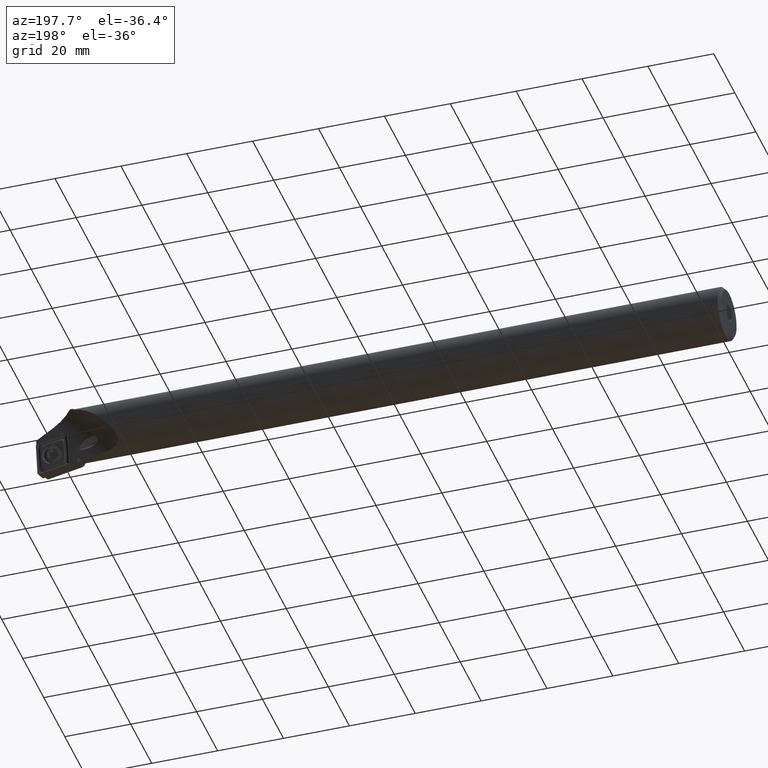
[diagram: clean part render]
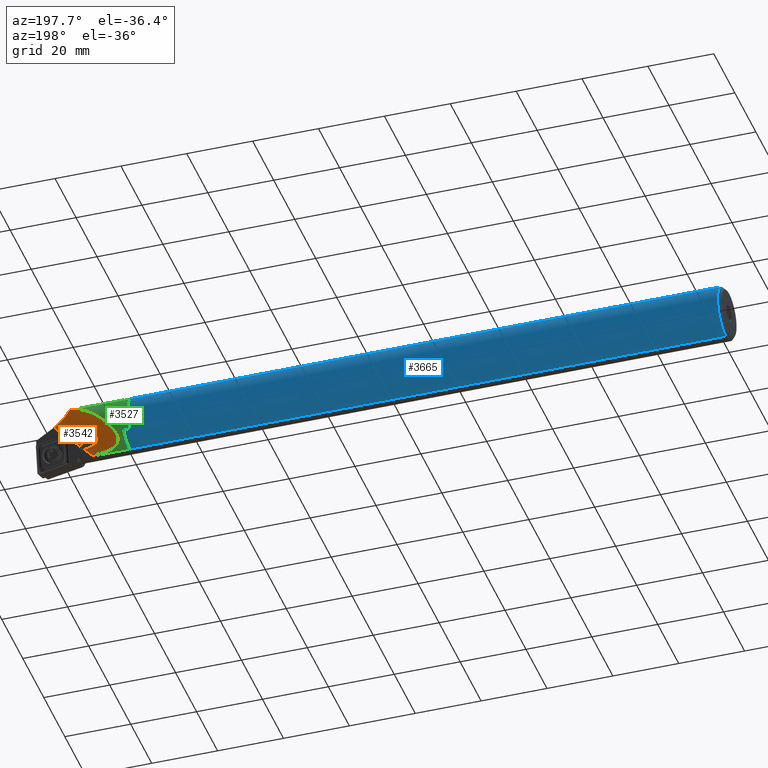
[diagram: same view with three faces highlighted in distinct colors, each labeled with its STEP entity id]
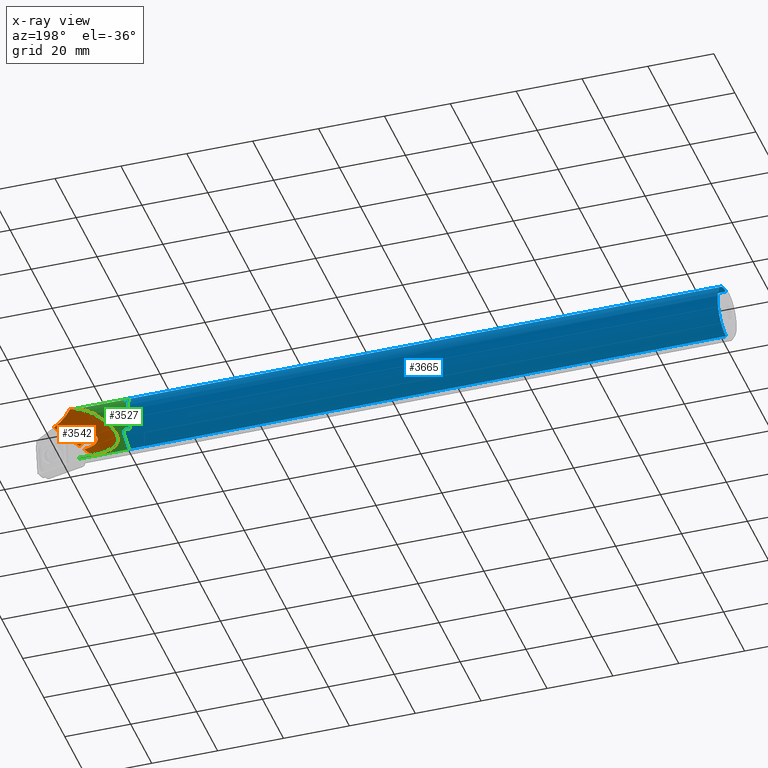
[diagram: x-ray of the same camera — body ghosted, the three highlighted faces saturated]
A machine part, auxiliary view with three faces highlighted in distinct colors.
The next image is the same camera in x-ray (body ghosted, the three faces saturated) — at least one of them is partly hidden behind the body in this view.
Their STEP definitions:

[orange] entity #3542 — the highlighted cylindrical surface (edge-blend (fillet) strip) has radius 10 mm, axis along (0.7017, 0.1237, 0.7017).
#62 = EDGE_CURVE ( 'NONE', #1733, #1750, #1026, .T. ) ;
#63 = EDGE_CURVE ( 'NONE', #1562, #1492, #3401, .T. ) ;
#64 = EDGE_CURVE ( 'NONE', #1503, #1492, #3387, .T. ) ;
#65 = EDGE_CURVE ( 'NONE', #1503, #1500, #3411, .T. ) ;
#66 = EDGE_CURVE ( 'NONE', #1642, #1500, #1017, .T. ) ;
#67 = EDGE_CURVE ( 'NONE', #1513, #1642, #3408, .T. ) ;
#68 = EDGE_CURVE ( 'NONE', #1751, #1497, #1108, .T. ) ;
#69 = EDGE_CURVE ( 'NONE', #1749, #1752, #3392, .T. ) ;
#412 = B_SPLINE_CURVE_WITH_KNOTS ( 'NONE', 3,
 ( #643, #652, #656, #657, #658, #659, #660, #661, #662, #663 ),
 .UNSPECIFIED., .F., .F.,
 ( 4, 2, 2, 2, 4 ),
 ( 8.331534646072879900E-017, 0.0009034669228116017800, 0.001806933845623120300, 0.002710400768434638800, 0.003613867691246157300 ),
 .UNSPECIFIED. ) ;
#429 = B_SPLINE_CURVE_WITH_KNOTS ( 'NONE', 3,
 ( #641, #640, #644, #645, #646, #647, #648, #649, #650, #651 ),
 .UNSPECIFIED., .F., .F.,
 ( 4, 2, 2, 2, 4 ),
 ( 0.009961593543882730000, 0.01066677178085007400, 0.01137195001781741800, 0.01207712825478476200, 0.01278230649175210600 ),
 .UNSPECIFIED. ) ;
#562 = CARTESIAN_POINT ( 'NONE',  ( 13.19691206762399500, 0.3048794854602927000, -7.994188420305423600 ) ) ;
#563 = CARTESIAN_POINT ( 'NONE',  ( 12.55990779225222700, 0.3048794854603129600, -7.994188420305423600 ) ) ;
#568 = CARTESIAN_POINT ( 'NONE',  ( 11.92826352814507000, 0.3362397817004940100, -7.993190554871852700 ) ) ;
#569 = CARTESIAN_POINT ( 'NONE',  ( 10.67629474721644400, 0.4649569152363503500, -7.986736974776641200 ) ) ;
#570 = CARTESIAN_POINT ( 'NONE',  ( 10.05593492632765300, 0.5621173772722286600, -7.981390578669111900 ) ) ;
#571 = CARTESIAN_POINT ( 'NONE',  ( 8.828588607646480600, 0.8336330403702199000, -7.957614433302383700 ) ) ;
#572 = CARTESIAN_POINT ( 'NONE',  ( 8.221475526521965400, 1.007293416494386300, -7.939670316204519900 ) ) ;
#573 = CARTESIAN_POINT ( 'NONE',  ( 7.026179083042718400, 1.462231007809192900, -7.868601224914963100 ) ) ;
#574 = CARTESIAN_POINT ( 'NONE',  ( 6.453090767474670900, 1.737205915765701400, -7.817247914304157800 ) ) ;
#575 = CARTESIAN_POINT ( 'NONE',  ( 5.796733732830551500, 2.167746518361623600, -7.701222507910516800 ) ) ;
#576 = CARTESIAN_POINT ( 'NONE',  ( 5.668448696224005300, 2.258389560386925500, -7.675269773176373700 ) ) ;
#577 = CARTESIAN_POINT ( 'NONE',  ( 5.419034177005180200, 2.450385708033715500, -7.616147279258959700 ) ) ;
#578 = CARTESIAN_POINT ( 'NONE',  ( 5.297206449383682300, 2.552413792243706700, -7.582737569549919100 ) ) ;
#579 = CARTESIAN_POINT ( 'NONE',  ( 4.951854678233359200, 2.871594964158866500, -7.470263932674411600 ) ) ;
#580 = CARTESIAN_POINT ( 'NONE',  ( 4.746495343046218500, 3.102961371781382200, -7.378896212232851000 ) ) ;
#581 = CARTESIAN_POINT ( 'NONE',  ( 4.410044580226719200, 3.605099432269986500, -7.147008931652338000 ) ) ;
#582 = CARTESIAN_POINT ( 'NONE',  ( 4.285775938472636600, 3.865771274280105800, -7.011038249318978900 ) ) ;
#583 = CARTESIAN_POINT ( 'NONE',  ( 4.172922453386557400, 4.269487528297569100, -6.767288043620514900 ) ) ;
#584 = CARTESIAN_POINT ( 'NONE',  ( 4.148275609639902900, 4.404692525571684700, -6.680138068654054400 ) ) ;
#585 = CARTESIAN_POINT ( 'NONE',  ( 4.124434477981220800, 4.668070153205809100, -6.498821578244570000 ) ) ;
#586 = CARTESIAN_POINT ( 'NONE',  ( 4.124882910303751000, 4.797434487890106100, -6.403949214173227500 ) ) ;
#587 = CARTESIAN_POINT ( 'NONE',  ( 4.148285493653692600, 5.051311502396528900, -6.205658330029446100 ) ) ;
#588 = CARTESIAN_POINT ( 'NONE',  ( 4.171335008039948300, 5.175081441216769400, -6.102721753747942100 ) ) ;
#589 = CARTESIAN_POINT ( 'NONE',  ( 4.235223179015871900, 5.410685120394380700, -5.894842428329821100 ) ) ;
#590 = CARTESIAN_POINT ( 'NONE',  ( 4.276143930086460500, 5.523525823928179300, -5.789125646170006700 ) ) ;
#591 = CARTESIAN_POINT ( 'NONE',  ( 4.421274820045398200, 5.848842421807415100, -5.466653036716814500 ) ) ;
#592 = CARTESIAN_POINT ( 'NONE',  ( 4.548737821150285600, 6.048944179041432900, -5.243272225408677700 ) ) ;
#593 = CARTESIAN_POINT ( 'NONE',  ( 4.836268178221102300, 6.407568198798311500, -4.798405890360869300 ) ) ;
#594 = CARTESIAN_POINT ( 'NONE',  ( 4.997257741919629100, 6.568306965706495000, -4.574874673675147100 ) ) ;
#595 = CARTESIAN_POINT ( 'NONE',  ( 5.343681471880620900, 6.860350276761155700, -4.124042768416195800 ) ) ;
#596 = CARTESIAN_POINT ( 'NONE',  ( 5.530265354239205100, 6.992121527028087000, -3.895579379131417900 ) ) ;
#597 = CARTESIAN_POINT ( 'NONE',  ( 6.109425181120694300, 7.343667472927737800, -3.214305000841939400 ) ) ;
#598 = CARTESIAN_POINT ( 'NONE',  ( 6.521111789138801700, 7.521910414693829600, -2.764343634409452700 ) ) ;
#599 = CARTESIAN_POINT ( 'NONE',  ( 7.162806284459606800, 7.725808420977646300, -2.089752915130344700 ) ) ;
#600 = CARTESIAN_POINT ( 'NONE',  ( 7.380915262128604900, 7.782953243960060200, -1.865033448610829100 ) ) ;
#601 = CARTESIAN_POINT ( 'NONE',  ( 7.824700095799509600, 7.877103126022005200, -1.415611989254100400 ) ) ;
#602 = CARTESIAN_POINT ( 'NONE',  ( 8.051053881071508700, 7.914137158563235600, -1.190268737553070500 ) ) ;
#603 = CARTESIAN_POINT ( 'NONE',  ( 9.187288868203234300, 8.049780751658595100, -0.07704521132747124700 ) ) ;
#604 = CARTESIAN_POINT ( 'NONE',  ( 10.11577070369677900, 8.004956223242940500, 0.7805279887805961500 ) ) ;
#605 = CARTESIAN_POINT ( 'NONE',  ( 11.55634175651995400, 7.757002464230291500, 2.000262430095542100 ) ) ;
#606 = CARTESIAN_POINT ( 'NONE',  ( 12.04756028830684000, 7.642922508220400400, 2.397183829365958600 ) ) ;
#607 = CARTESIAN_POINT ( 'NONE',  ( 13.03835969109079300, 7.364942713947606000, 3.149344947557493900 ) ) ;
#608 = CARTESIAN_POINT ( 'NONE',  ( 13.53763760492534700, 7.201496890293090500, 3.504553573336092900 ) ) ;
#609 = CARTESIAN_POINT ( 'NONE',  ( 15.05756116951498100, 6.656533895551027600, 4.501596309590202500 ) ) ;
#610 = CARTESIAN_POINT ( 'NONE',  ( 16.10066068931761100, 6.219596025045765600, 5.073779427718293700 ) ) ;
#611 = CARTESIAN_POINT ( 'NONE',  ( 17.20000000000006300, 5.766908848730163400, 5.544615616112456500 ) ) ;
#640 = CARTESIAN_POINT ( 'NONE',  ( 14.84282025984017900, 1.554635990364016300, -2.811618349431864100 ) ) ;
#641 = CARTESIAN_POINT ( 'NONE',  ( 14.63750822044960000, 1.633434259869636100, -2.724468559245919700 ) ) ;
#643 = CARTESIAN_POINT ( 'NONE',  ( 15.61272115689248200, 0.7308518081391096600, -5.578379331036938300 ) ) ;
#644 = CARTESIAN_POINT ( 'NONE',  ( 15.04302411737490500, 1.479664510520714500, -2.913021625577142200 ) ) ;
#645 = CARTESIAN_POINT ( 'NONE',  ( 15.43549794612114700, 1.339727414057416000, -3.141278463212653400 ) ) ;
#646 = CARTESIAN_POINT ( 'NONE',  ( 15.62853109664869000, 1.274557162682777000, -3.268811513396054900 ) ) ;
#647 = CARTESIAN_POINT ( 'NONE',  ( 15.99950207035085200, 1.158362409405295800, -3.542359413171593600 ) ) ;
#648 = CARTESIAN_POINT ( 'NONE',  ( 16.17847107078228000, 1.106965935827852500, -3.688746699452642100 ) ) ;
#649 = CARTESIAN_POINT ( 'NONE',  ( 16.52256836913703400, 1.017540057379880100, -4.001665609640490100 ) ) ;
#650 = CARTESIAN_POINT ( 'NONE',  ( 16.68817048126843600, 0.9795962371098974100, -4.167679573283775700 ) ) ;
#651 = CARTESIAN_POINT ( 'NONE',  ( 16.84213972786931300, 0.9476314727863974800, -4.348960760060043300 ) ) ;
#652 = CARTESIAN_POINT ( 'NONE',  ( 15.30730973233810700, 0.7330987040202483500, -5.565636551275641600 ) ) ;
#656 = CARTESIAN_POINT ( 'NONE',  ( 15.00518708265653900, 0.7453221001493056700, -5.540874846345150000 ) ) ;
#657 = CARTESIAN_POINT ( 'NONE',  ( 14.40656695467210600, 0.7910792344386252700, -5.474417357248416500 ) ) ;
#658 = CARTESIAN_POINT ( 'NONE',  ( 14.11011193225832200, 0.8246032230554116700, -5.432448206285273300 ) ) ;
#659 = CARTESIAN_POINT ( 'NONE',  ( 13.52372289175507300, 0.9164464080088936500, -5.328956732789382800 ) ) ;
#660 = CARTESIAN_POINT ( 'NONE',  ( 13.23375810065958500, 0.9746645783670752100, -5.267540321437599500 ) ) ;
#661 = CARTESIAN_POINT ( 'NONE',  ( 12.66276925232470100, 1.122906864638323300, -5.116030193075856900 ) ) ;
#662 = CARTESIAN_POINT ( 'NONE',  ( 12.38065750689340800, 1.213525146650746400, -5.025573399612524000 ) ) ;
#663 = CARTESIAN_POINT ( 'NONE',  ( 12.11822203250132000, 1.322372983797305100, -4.914176149853084000 ) ) ;
#718 = CARTESIAN_POINT ( 'NONE',  ( 17.72915026221291900, 5.689668439315593000, 5.904885523924751700 ) ) ;
#720 = CARTESIAN_POINT ( 'NONE',  ( 19.79055538857846100, 1.467516704112803000, -1.400545099350877900 ) ) ;
#721 = CARTESIAN_POINT ( 'NONE',  ( 21.25549330452729200, 1.906495661846890700, 0.9684651836071489500 ) ) ;
#722 = CARTESIAN_POINT ( 'NONE',  ( 24.31901265563577000, 2.266005901280355500, 3.127912167706429400 ) ) ;
#724 = CARTESIAN_POINT ( 'NONE',  ( 18.44594857874853800, 5.394066060381171600, 6.176087057048669700 ) ) ;
#752 = CARTESIAN_POINT ( 'NONE',  ( 17.20000000000006300, 5.766908848730163400, 5.544615616112456500 ) ) ;
#929 = VECTOR ( 'NONE', #2329, 1000.000000000000000 ) ;
#987 = VECTOR ( 'NONE', #2307, 1000.000000000000000 ) ;
#1017 = LINE ( 'NONE', #2319, #1217 ) ;
#1026 = LINE ( 'NONE', #2301, #987 ) ;
#1108 = LINE ( 'NONE', #2324, #929 ) ;
#1217 = VECTOR ( 'NONE', #2323, 1000.000000000000000 ) ;
#1443 = EDGE_CURVE ( 'NONE', #1733, #1562, #4973, .T. ) ;
#1447 = EDGE_CURVE ( 'NONE', #1752, #1751, #429, .T. ) ;
#1449 = EDGE_CURVE ( 'NONE', #1750, #1749, #412, .T. ) ;
#1476 = ORIENTED_EDGE ( 'NONE', *, *, #66, .F. ) ;
#1492 = VERTEX_POINT ( 'NONE', #718 ) ;
#1495 = ORIENTED_EDGE ( 'NONE', *, *, #68, .F. ) ;
#1496 = ORIENTED_EDGE ( 'NONE', *, *, #62, .F. ) ;
#1497 = VERTEX_POINT ( 'NONE', #720 ) ;
#1500 = VERTEX_POINT ( 'NONE', #722 ) ;
#1503 = VERTEX_POINT ( 'NONE', #724 ) ;
#1513 = VERTEX_POINT ( 'NONE', #721 ) ;
#1558 = ORIENTED_EDGE ( 'NONE', *, *, #2743, .F. ) ;
#1562 = VERTEX_POINT ( 'NONE', #752 ) ;
#1642 = VERTEX_POINT ( 'NONE', #3669 ) ;
#1685 = ORIENTED_EDGE ( 'NONE', *, *, #1443, .T. ) ;
#1687 = ORIENTED_EDGE ( 'NONE', *, *, #1449, .F. ) ;
#1733 = VERTEX_POINT ( 'NONE', #3704 ) ;
#1749 = VERTEX_POINT ( 'NONE', #3719 ) ;
#1750 = VERTEX_POINT ( 'NONE', #3720 ) ;
#1751 = VERTEX_POINT ( 'NONE', #3721 ) ;
#1752 = VERTEX_POINT ( 'NONE', #3722 ) ;
#2089 = ORIENTED_EDGE ( 'NONE', *, *, #63, .T. ) ;
#2090 = ORIENTED_EDGE ( 'NONE', *, *, #64, .F. ) ;
#2106 = ORIENTED_EDGE ( 'NONE', *, *, #67, .F. ) ;
#2107 = ORIENTED_EDGE ( 'NONE', *, *, #1447, .F. ) ;
#2108 = ORIENTED_EDGE ( 'NONE', *, *, #69, .F. ) ;
#2112 = ORIENTED_EDGE ( 'NONE', *, *, #65, .T. ) ;
#2117 = B_SPLINE_CURVE_WITH_KNOTS ( 'NONE', 3,
 ( #3737, #3738, #3743, #3744, #3745, #3746, #3747, #3748, #3749, #3750, #3751, #3752, #3753, #3754, #3755, #3756, #3757, #3758 ),
 .UNSPECIFIED., .F., .F.,
 ( 4, 2, 2, 2, 2, 2, 2, 2, 4 ),
 ( 3.728898976508548800E-017, 0.0004207973918956817500, 0.0008415947837913262000, 0.001262392175686970800, 0.001683189567582615800, 0.002103986959478260700, 0.002524784351373905200, 0.002945581743269550100, 0.003366379135165195100 ),
 .UNSPECIFIED. ) ;
#2292 = CARTESIAN_POINT ( 'NONE',  ( 18.20481101344134300, 5.492218084267162400, 6.090363119560290500 ) ) ;
#2297 = CARTESIAN_POINT ( 'NONE',  ( 17.38779930840104300, 5.701411831666499500, 5.635617829380011700 ) ) ;
#2301 = CARTESIAN_POINT ( 'NONE',  ( -84.84131182259415000, -16.98190452712309200, -106.0324123105246900 ) ) ;
#2306 = CARTESIAN_POINT ( 'NONE',  ( 17.29505511485568500, 5.727766946753055400, 5.585326784658019700 ) ) ;
#2307 = DIRECTION ( 'NONE',  ( 0.7016738431598594800, 0.1237240302064883100, 0.7016738431598664700 ) ) ;
#2308 = CARTESIAN_POINT ( 'NONE',  ( 20.03677730345767200, 3.579001329078760100, 5.451725996893344500 ) ) ;
#2309 = CARTESIAN_POINT ( 'NONE',  ( 17.20000000000006300, 5.766908848730163400, 5.544615616112456500 ) ) ;
#2310 = CARTESIAN_POINT ( 'NONE',  ( 17.56781747906008600, 5.674337769016178300, 5.756856763397999900 ) ) ;
#2311 = CARTESIAN_POINT ( 'NONE',  ( 17.65396660953325300, 5.674322365438310800, 5.827594767056617700 ) ) ;
#2312 = CARTESIAN_POINT ( 'NONE',  ( 17.72915026221291900, 5.689668439315593000, 5.904885523924751700 ) ) ;
#2313 = CARTESIAN_POINT ( 'NONE',  ( 21.50859645038772400, 1.893015872130834600, 0.9560248903260120100 ) ) ;
#2314 = CARTESIAN_POINT ( 'NONE',  ( 18.44594857874853800, 5.394066060381171600, 6.176087057048669700 ) ) ;
#2315 = CARTESIAN_POINT ( 'NONE',  ( 11.89110342614652400, 1.421622683856539100, -4.812110209784849600 ) ) ;
#2316 = CARTESIAN_POINT ( 'NONE',  ( 17.96594125352922300, 5.590953315549543700, 6.000002748788763700 ) ) ;
#2317 = CARTESIAN_POINT ( 'NONE',  ( 17.72915026221291900, 5.689668439315593000, 5.904885523924751700 ) ) ;
#2318 = CARTESIAN_POINT ( 'NONE',  ( 18.44594857874853800, 5.394066060381171600, 6.176087057048669700 ) ) ;
#2319 = CARTESIAN_POINT ( 'NONE',  ( -84.84131182259415000, -16.98190452712309200, -106.0324123105246900 ) ) ;
#2320 = CARTESIAN_POINT ( 'NONE',  ( 22.08450497907624000, 2.488358476398444100, 4.388936284518893900 ) ) ;
#2321 = CARTESIAN_POINT ( 'NONE',  ( 24.31901265563577000, 2.266005901280355500, 3.127912167706429400 ) ) ;
#2322 = CARTESIAN_POINT ( 'NONE',  ( 21.38304335640204800, 1.900695287936372500, 0.9694879460257702600 ) ) ;
#2323 = DIRECTION ( 'NONE',  ( 0.7016738431598594800, 0.1237240302064883100, 0.7016738431598664700 ) ) ;
#2324 = CARTESIAN_POINT ( 'NONE',  ( -84.84131182259415000, -16.98190452712309200, -106.0324123105246900 ) ) ;
#2325 = CARTESIAN_POINT ( 'NONE',  ( 21.25549330452729200, 1.906495661846890700, 0.9684651836071489500 ) ) ;
#2326 = CARTESIAN_POINT ( 'NONE',  ( 21.75582186300909300, 1.875518281181447700, 0.9002398606194730300 ) ) ;
#2327 = CARTESIAN_POINT ( 'NONE',  ( 21.87741289689638400, 1.865679772751403400, 0.8575498730622700400 ) ) ;
#2328 = CARTESIAN_POINT ( 'NONE',  ( 21.99222719825925800, 1.855730846824767700, 0.8011267103298448400 ) ) ;
#2329 = DIRECTION ( 'NONE',  ( 0.7016738431598594800, 0.1237240302064883100, 0.7016738431598664700 ) ) ;
#2330 = CARTESIAN_POINT ( 'NONE',  ( 12.00298064932320800, 1.370170543703304900, -4.865259084908821300 ) ) ;
#2332 = CARTESIAN_POINT ( 'NONE',  ( 12.11822203250132000, 1.322372983797305100, -4.914176149853084000 ) ) ;
#2334 = CARTESIAN_POINT ( 'NONE',  ( 11.67612899880506000, 1.533305358634393400, -4.694032578636477400 ) ) ;
#2335 = CARTESIAN_POINT ( 'NONE',  ( 11.57270809088052700, 1.593822675695127900, -4.628800798042870000 ) ) ;
#2336 = CARTESIAN_POINT ( 'NONE',  ( 11.28942920854818900, 1.786257176356153700, -4.413224124375235900 ) ) ;
#2337 = CARTESIAN_POINT ( 'NONE',  ( 11.12984633699328700, 1.933602734324389600, -4.239748769072737600 ) ) ;
#2338 = CARTESIAN_POINT ( 'NONE',  ( 11.01396903705884100, 2.159117638129786500, -3.919233530175281600 ) ) ;
#2339 = CARTESIAN_POINT ( 'NONE',  ( 10.99794412616091500, 2.232943513153496700, -3.804346503884310500 ) ) ;
#2340 = CARTESIAN_POINT ( 'NONE',  ( 11.02083313052140500, 2.364220932677128000, -3.568766135636087400 ) ) ;
#2341 = CARTESIAN_POINT ( 'NONE',  ( 11.06010199158813900, 2.420906184610438000, -3.448877769649515200 ) ) ;
#2342 = CARTESIAN_POINT ( 'NONE',  ( 11.18344900392882700, 2.505848791301044100, -3.223778087975471600 ) ) ;
#2343 = CARTESIAN_POINT ( 'NONE',  ( 11.26767571858903600, 2.534577112045383300, -3.117627346744667800 ) ) ;
#2344 = CARTESIAN_POINT ( 'NONE',  ( 11.45880633234513400, 2.565725742718492500, -2.930561534224526800 ) ) ;
#2345 = CARTESIAN_POINT ( 'NONE',  ( 11.56814800011704800, 2.568807510995282600, -2.846929244629273500 ) ) ;
#2346 = CARTESIAN_POINT ( 'NONE',  ( 11.91009437856113500, 2.549475517659061600, -2.633190070251259000 ) ) ;
#2347 = CARTESIAN_POINT ( 'NONE',  ( 12.16281702113859900, 2.499302585708969500, -2.534773218728028100 ) ) ;
#2348 = CARTESIAN_POINT ( 'NONE',  ( 12.66711636770933700, 2.366047831831274500, -2.413224737432489300 ) ) ;
#2349 = CARTESIAN_POINT ( 'NONE',  ( 12.92588896074342500, 2.281078381600582600, -2.388548402924875800 ) ) ;
#2350 = CARTESIAN_POINT ( 'NONE',  ( 13.42998182739068200, 2.101758726596643500, -2.398095708289280600 ) ) ;
#2351 = CARTESIAN_POINT ( 'NONE',  ( 13.67743138357655800, 2.006794973457307800, -2.431493427587643600 ) ) ;
#2352 = CARTESIAN_POINT ( 'NONE',  ( 14.16768019730539400, 1.816213144719602800, -2.545954249915130400 ) ) ;
#2353 = CARTESIAN_POINT ( 'NONE',  ( 14.40649135266063800, 1.722097981015330300, -2.626407716749870500 ) ) ;
#2354 = CARTESIAN_POINT ( 'NONE',  ( 14.63750822044960000, 1.633434259869636100, -2.724468559245919700 ) ) ;
#2616 = AXIS2_PLACEMENT_3D ( 'NONE', #2874, #2872, #2867 ) ;
#2743 = EDGE_CURVE ( 'NONE', #1497, #1513, #2117, .T. ) ;
#2867 = DIRECTION ( 'NONE',  ( 0.7071067811865516800, 0.0000000000000000000, -0.7071067811865434600 ) ) ;
#2872 = DIRECTION ( 'NONE',  ( 0.7016738431598594800, 0.1237240302064883100, 0.7016738431598664700 ) ) ;
#2874 = CARTESIAN_POINT ( 'NONE',  ( -84.84131182259416400, -7.133826997000988400, -107.7688940871939700 ) ) ;
#3387 = B_SPLINE_CURVE_WITH_KNOTS ( 'NONE', 3,
 ( #2314, #2292, #2316, #2317 ),
 .UNSPECIFIED., .F., .F.,
 ( 4, 4 ),
 ( 0.002212834024879329800, 0.003033183488462330100 ),
 .UNSPECIFIED. ) ;
#3392 = B_SPLINE_CURVE_WITH_KNOTS ( 'NONE', 3,
 ( #2332, #2330, #2315, #2334, #2335, #2336, #2337, #2338, #2339, #2340, #2341, #2342, #2343, #2344, #2345, #2346, #2347, #2348, #2349, #2350, #2351, #2352, #2353, #2354 ),
 .UNSPECIFIED., .F., .F.,
 ( 4, 2, 2, 2, 2, 2, 2, 2, 2, 2, 2, 4 ),
 ( 0.003613867691246157300, 0.004010600557035944700, 0.004407333422825733000, 0.005200799154405307000, 0.005597532020195093500, 0.005994264885984880100, 0.006390997751774665800, 0.006787730617564453200, 0.007581196349144022000, 0.008374662080723590700, 0.009168127812303160400, 0.009961593543882730000 ),
 .UNSPECIFIED. ) ;
#3401 = B_SPLINE_CURVE_WITH_KNOTS ( 'NONE', 3,
 ( #2309, #2306, #2297, #2310, #2311, #2312 ),
 .UNSPECIFIED., .F., .F.,
 ( 4, 2, 4 ),
 ( 2.286173011845496300E-007, 0.0003262029871419422900, 0.0006521773569827000100 ),
 .UNSPECIFIED. ) ;
#3408 = B_SPLINE_CURVE_WITH_KNOTS ( 'NONE', 3,
 ( #2325, #2322, #2313, #2326, #2327, #2328 ),
 .UNSPECIFIED., .F., .F.,
 ( 4, 2, 4 ),
 ( 0.003366379135165195100, 0.003745826013761129200, 0.004125272892357063400 ),
 .UNSPECIFIED. ) ;
#3411 =( BOUNDED_CURVE ( )  B_SPLINE_CURVE ( 3, ( #2318, #2308, #2320, #2321 ),
 .UNSPECIFIED., .F., .F. ) 
 B_SPLINE_CURVE_WITH_KNOTS ( ( 4, 4 ),
 ( 3.746558510862781200, 4.477004050082562100 ),
 .UNSPECIFIED. ) 
 CURVE ( )  GEOMETRIC_REPRESENTATION_ITEM ( )  RATIONAL_B_SPLINE_CURVE ( ( 1.000000000000000000, 0.9560294803544646700, 0.9560294803544646700, 1.000000000000000000 ) ) 
 REPRESENTATION_ITEM ( '' )  );
#3542 = ADVANCED_FACE ( 'NONE', ( #4959 ), #4656, .F. ) ;
#3669 = CARTESIAN_POINT ( 'NONE',  ( 21.99222719825925800, 1.855730846824767700, 0.8011267103298448400 ) ) ;
#3704 = CARTESIAN_POINT ( 'NONE',  ( 13.19691206762399500, 0.3048794854602927000, -7.994188420305423600 ) ) ;
#3719 = CARTESIAN_POINT ( 'NONE',  ( 12.11822203250132000, 1.322372983797305100, -4.914176149853084000 ) ) ;
#3720 = CARTESIAN_POINT ( 'NONE',  ( 15.61272115689248200, 0.7308518081391096600, -5.578379331036938300 ) ) ;
#3721 = CARTESIAN_POINT ( 'NONE',  ( 16.84213972786931300, 0.9476314727863974800, -4.348960760060043300 ) ) ;
#3722 = CARTESIAN_POINT ( 'NONE',  ( 14.63750822044960000, 1.633434259869636100, -2.724468559245919700 ) ) ;
#3737 = CARTESIAN_POINT ( 'NONE',  ( 19.79055538857846100, 1.467516704112803000, -1.400545099350877900 ) ) ;
#3738 = CARTESIAN_POINT ( 'NONE',  ( 19.72507445833015200, 1.489455908211762900, -1.276121690007634200 ) ) ;
#3743 = CARTESIAN_POINT ( 'NONE',  ( 19.67710912579259700, 1.515048477479875800, -1.146706080990929100 ) ) ;
#3744 = CARTESIAN_POINT ( 'NONE',  ( 19.61505740534659400, 1.571607123147681600, -0.8778805087033284500 ) ) ;
#3745 = CARTESIAN_POINT ( 'NONE',  ( 19.60167991494991200, 1.602589769949742000, -0.7385946404728978000 ) ) ;
#3746 = CARTESIAN_POINT ( 'NONE',  ( 19.61121838056363500, 1.664405007274709400, -0.4650665975503306400 ) ) ;
#3747 = CARTESIAN_POINT ( 'NONE',  ( 19.63432817380208600, 1.696084364420295200, -0.3269486788865633700 ) ) ;
#3748 = CARTESIAN_POINT ( 'NONE',  ( 19.71476252906463200, 1.755159616425298900, -0.06399298221742660800 ) ) ;
#3749 = CARTESIAN_POINT ( 'NONE',  ( 19.77188080976472800, 1.782826245331807300, 0.06205670231710998900 ) ) ;
#3750 = CARTESIAN_POINT ( 'NONE',  ( 19.91930858404587900, 1.832000435405807900, 0.2996295219868883600 ) ) ;
#3751 = CARTESIAN_POINT ( 'NONE',  ( 20.00696803422828700, 1.852691491299656200, 0.4071987407952578600 ) ) ;
#3752 = CARTESIAN_POINT ( 'NONE',  ( 20.20965068880028800, 1.885964430868886800, 0.6004143312571043100 ) ) ;
#3753 = CARTESIAN_POINT ( 'NONE',  ( 20.32435565976902900, 1.898286378457097400, 0.6849461022688065900 ) ) ;
#3754 = CARTESIAN_POINT ( 'NONE',  ( 20.56884499984160200, 1.913896066164790800, 0.8218318441938372600 ) ) ;
#3755 = CARTESIAN_POINT ( 'NONE',  ( 20.70197059014590100, 1.917372206178420600, 0.8758795630772237000 ) ) ;
#3756 = CARTESIAN_POINT ( 'NONE',  ( 20.97355272550549500, 1.916836032120321300, 0.9481425558517448900 ) ) ;
#3757 = CARTESIAN_POINT ( 'NONE',  ( 21.11404338836602100, 1.912928135932848500, 0.9673309648730864500 ) ) ;
#3758 = CARTESIAN_POINT ( 'NONE',  ( 21.25549330452729200, 1.906495661846890700, 0.9684651836071489500 ) ) ;
#4335 = EDGE_LOOP ( 'NONE', ( #1496, #1685, #2089, #2090, #2112, #1476, #2106, #1558, #1495, #2107, #2108, #1687 ) ) ;
#4656 = CYLINDRICAL_SURFACE ( 'NONE', #2616, 10.00000000000002300 ) ;
#4959 = FACE_OUTER_BOUND ( 'NONE', #4335, .T. ) ;
#4973 = B_SPLINE_CURVE_WITH_KNOTS ( 'NONE', 3,
 ( #562, #563, #568, #569, #570, #571, #572, #573, #574, #575, #576, #577, #578, #579, #580, #581, #582, #583, #584, #585, #586, #587, #588, #589, #590, #591, #592, #593, #594, #595, #596, #597, #598, #599, #600, #601, #602, #603, #604, #605, #606, #607, #608, #609, #610, #611 ),
 .UNSPECIFIED., .F., .F.,
 ( 4, 2, 2, 2, 2, 2, 2, 2, 2, 2, 2, 2, 2, 2, 2, 2, 2, 2, 2, 2, 2, 2, 4 ),
 ( 1.460806627914136500E-016, 0.001883603924333945100, 0.003767207848667744000, 0.005650811773001542500, 0.007534415697335338800, 0.008005316678418786600, 0.008476217659502237000, 0.009418019621669132500, 0.01035982158383602800, 0.01083072256491947500, 0.01130162354600292500, 0.01177252452708637200, 0.01224342550816982100, 0.01318522747033671700, 0.01412702943250361400, 0.01506883139467050900, 0.01695243531900430400, 0.01789423728117119800, 0.01883603924333809900, 0.02260324709200569500, 0.02448685101633948900, 0.02637045494067328400, 0.03013766278934087600 ),
 .UNSPECIFIED. ) ;

[blue] entity #3665 — the highlighted cylindrical surface (edge-blend (fillet) strip) has radius 8 mm, axis along (-1, -0, 0).
#158 = ORIENTED_EDGE ( 'NONE', *, *, #3486, .F. ) ;
#162 = ORIENTED_EDGE ( 'NONE', *, *, #3487, .T. ) ;
#167 = ORIENTED_EDGE ( 'NONE', *, *, #3493, .F. ) ;
#171 = ORIENTED_EDGE ( 'NONE', *, *, #3492, .T. ) ;
#174 = ORIENTED_EDGE ( 'NONE', *, *, #3485, .F. ) ;
#180 = ORIENTED_EDGE ( 'NONE', *, *, #3490, .T. ) ;
#183 = ORIENTED_EDGE ( 'NONE', *, *, #3488, .F. ) ;
#198 = ORIENTED_EDGE ( 'NONE', *, *, #3489, .F. ) ;
#825 = VECTOR ( 'NONE', #4025, 1000.000000000000000 ) ;
#827 = CIRCLE ( 'NONE', #2543, 8.000000000000007100 ) ;
#833 = CIRCLE ( 'NONE', #2540, 8.000000000000007100 ) ;
#837 = VECTOR ( 'NONE', #4021, 1000.000000000000000 ) ;
#848 = CIRCLE ( 'NONE', #2547, 8.000000000000007100 ) ;
#853 = LINE ( 'NONE', #4030, #825 ) ;
#856 = LINE ( 'NONE', #4026, #882 ) ;
#857 = LINE ( 'NONE', #4035, #893 ) ;
#863 = CIRCLE ( 'NONE', #2542, 8.000000000000007100 ) ;
#882 = VECTOR ( 'NONE', #4031, 1000.000000000000000 ) ;
#893 = VECTOR ( 'NONE', #4036, 1000.000000000000000 ) ;
#894 = LINE ( 'NONE', #4020, #837 ) ;
#1911 = EDGE_LOOP ( 'NONE', ( #174, #162, #158, #183, #198, #180, #171, #167 ) ) ;
#2540 = AXIS2_PLACEMENT_3D ( 'NONE', #4022, #4023, #4024 ) ;
#2542 = AXIS2_PLACEMENT_3D ( 'NONE', #4027, #4028, #4029 ) ;
#2543 = AXIS2_PLACEMENT_3D ( 'NONE', #4032, #4033, #4034 ) ;
#2547 = AXIS2_PLACEMENT_3D ( 'NONE', #4041, #4042, #4043 ) ;
#3485 = EDGE_CURVE ( 'NONE', #4376, #4281, #833, .T. ) ;
#3486 = EDGE_CURVE ( 'NONE', #4221, #4204, #863, .T. ) ;
#3487 = EDGE_CURVE ( 'NONE', #4376, #4204, #894, .T. ) ;
#3488 = EDGE_CURVE ( 'NONE', #4209, #4221, #856, .T. ) ;
#3489 = EDGE_CURVE ( 'NONE', #4315, #4209, #827, .T. ) ;
#3490 = EDGE_CURVE ( 'NONE', #4315, #4303, #853, .T. ) ;
#3492 = EDGE_CURVE ( 'NONE', #4303, #4401, #848, .T. ) ;
#3493 = EDGE_CURVE ( 'NONE', #4281, #4401, #857, .T. ) ;
#3665 = ADVANCED_FACE ( 'NONE', ( #4606 ), #4615, .T. ) ;
#4020 = CARTESIAN_POINT ( 'NONE',  ( -184.6546161680327000, -3.747448090156407900E-014, -8.000000000000005300 ) ) ;
#4021 = DIRECTION ( 'NONE',  ( -1.000000000000000000, -1.081007496269136300E-016, 4.550406820893250800E-017 ) ) ;
#4022 = CARTESIAN_POINT ( 'NONE',  ( 1.950000000000000400, 5.583709814272271300E-017, 4.123749905912599300E-015 ) ) ;
#4023 = DIRECTION ( 'NONE',  ( 1.000000000000000000, 1.081007496269136300E-016, -4.550406820893250800E-017 ) ) ;
#4024 = DIRECTION ( 'NONE',  ( -8.131516293641275900E-017, 5.551115123125777800E-017, -1.000000000000000000 ) ) ;
#4025 = DIRECTION ( 'NONE',  ( -1.000000000000000000, -1.081007496269136300E-016, 4.550406820893250800E-017 ) ) ;
#4026 = CARTESIAN_POINT ( 'NONE',  ( -184.6546161680327000, -3.934237676058209200E-014, 8.000000000000008900 ) ) ;
#4027 = CARTESIAN_POINT ( 'NONE',  ( -179.0000000000004300, -1.157295511637398800E-014, -1.653830408135382800E-016 ) ) ;
#4028 = DIRECTION ( 'NONE',  ( -1.000000000000000000, -1.081007496269136300E-016, 4.550406820893250800E-017 ) ) ;
#4029 = DIRECTION ( 'NONE',  ( 0.0000000000000000000, -5.551115123125782700E-017, 1.000000000000000000 ) ) ;
#4030 = CARTESIAN_POINT ( 'NONE',  ( 1.950000000000000400, 5.925000000000011400, 5.375348825890282200 ) ) ;
#4031 = DIRECTION ( 'NONE',  ( -1.000000000000000000, -1.081007496269136300E-016, 4.550406820893250800E-017 ) ) ;
#4032 = CARTESIAN_POINT ( 'NONE',  ( 1.950000000000000400, 5.583709814272271300E-017, 4.123749905912599300E-015 ) ) ;
#4033 = DIRECTION ( 'NONE',  ( 1.000000000000000000, 1.081007496269136300E-016, -4.550406820893250800E-017 ) ) ;
#4034 = DIRECTION ( 'NONE',  ( -8.131516293641275900E-017, 5.551115123125777800E-017, -1.000000000000000000 ) ) ;
#4035 = CARTESIAN_POINT ( 'NONE',  ( 1.950000000000000400, 5.925000000000012300, -5.375348825890279500 ) ) ;
#4036 = DIRECTION ( 'NONE',  ( -1.000000000000000000, -1.081007496269136300E-016, 4.550406820893250800E-017 ) ) ;
#4041 = CARTESIAN_POINT ( 'NONE',  ( 0.0000000000000000000, 0.0000000000000000000, 0.0000000000000000000 ) ) ;
#4042 = DIRECTION ( 'NONE',  ( -1.000000000000000000, -1.081007496269136300E-016, 4.550406820893250800E-017 ) ) ;
#4043 = DIRECTION ( 'NONE',  ( 8.617803217782845300E-017, -5.551115123125777800E-017, 1.000000000000000000 ) ) ;
#4204 = VERTEX_POINT ( 'NONE', #5160 ) ;
#4209 = VERTEX_POINT ( 'NONE', #5166 ) ;
#4221 = VERTEX_POINT ( 'NONE', #5165 ) ;
#4281 = VERTEX_POINT ( 'NONE', #5203 ) ;
#4303 = VERTEX_POINT ( 'NONE', #5210 ) ;
#4315 = VERTEX_POINT ( 'NONE', #5223 ) ;
#4376 = VERTEX_POINT ( 'NONE', #5246 ) ;
#4401 = VERTEX_POINT ( 'NONE', #5261 ) ;
#4606 = FACE_OUTER_BOUND ( 'NONE', #1911, .T. ) ;
#4615 = CYLINDRICAL_SURFACE ( 'NONE', #5005, 8.000000000000007100 ) ;
#5005 = AXIS2_PLACEMENT_3D ( 'NONE', #5161, #5158, #5157 ) ;
#5157 = DIRECTION ( 'NONE',  ( 0.0000000000000000000, -5.551115123125782700E-017, 1.000000000000000000 ) ) ;
#5158 = DIRECTION ( 'NONE',  ( -1.000000000000000000, -1.081007496269136300E-016, 4.550406820893250800E-017 ) ) ;
#5160 = CARTESIAN_POINT ( 'NONE',  ( -179.0000000000004300, -2.708279733245227100E-014, -8.000000000000000000 ) ) ;
#5161 = CARTESIAN_POINT ( 'NONE',  ( -184.6546161680327000, -3.889828755073202900E-014, 1.078580501998626200E-015 ) ) ;
#5165 = CARTESIAN_POINT ( 'NONE',  ( -179.0000000000004300, -1.201704432622405000E-014, 8.000000000000007100 ) ) ;
#5166 = CARTESIAN_POINT ( 'NONE',  ( 1.950000000000000800, -2.895069319147030000E-014, 8.000000000000003600 ) ) ;
#5203 = CARTESIAN_POINT ( 'NONE',  ( 1.950000000000000400, 5.925000000000012300, -5.375348825890279500 ) ) ;
#5210 = CARTESIAN_POINT ( 'NONE',  ( -4.163336342344337000E-014, 5.925000000000010500, 5.375348825890279500 ) ) ;
#5223 = CARTESIAN_POINT ( 'NONE',  ( 1.950000000000000400, 5.925000000000011400, 5.375348825890282200 ) ) ;
#5246 = CARTESIAN_POINT ( 'NONE',  ( 1.950000000000000000, -2.708279733245225600E-014, -7.999999999999996400 ) ) ;
#5261 = CARTESIAN_POINT ( 'NONE',  ( 6.938893903907228400E-015, 5.925000000000008700, -5.375348825890279500 ) ) ;

[green] entity #3527 — the highlighted cylindrical surface (edge-blend (fillet) strip) has radius 8 mm, axis along (-1, -0, 0).
#216 = FACE_OUTER_BOUND ( 'NONE', #1485, .T. ) ;
#536 = CARTESIAN_POINT ( 'NONE',  ( -1.960577716317849100, -2.684006449943982100E-015, -8.000000000000012400 ) ) ;
#537 = DIRECTION ( 'NONE',  ( -1.000000000000000000, -1.081007496269136300E-016, 4.550406820893250800E-017 ) ) ;
#538 = CARTESIAN_POINT ( 'NONE',  ( -1.960577716317871000, 6.025000000000007500, -5.263019570550740800 ) ) ;
#539 = DIRECTION ( 'NONE',  ( -1.000000000000000000, -1.081007496269136300E-016, 4.550406820893250800E-017 ) ) ;
#540 = CARTESIAN_POINT ( 'NONE',  ( 17.20000000000002100, -2.314795315236983800E-015, 2.357979322019447100E-014 ) ) ;
#541 = DIRECTION ( 'NONE',  ( -1.000000000000000000, -1.081007496269136300E-016, 4.550406820893250800E-017 ) ) ;
#542 = DIRECTION ( 'NONE',  ( 0.0000000000000000000, 1.110223024625154800E-016, 1.000000000000000000 ) ) ;
#543 = CARTESIAN_POINT ( 'NONE',  ( -1.960577716317836400, 6.025000000000006600, 5.263019570550747000 ) ) ;
#544 = DIRECTION ( 'NONE',  ( 1.000000000000000000, 1.081007496269136300E-016, -4.550406820893250800E-017 ) ) ;
#545 = CARTESIAN_POINT ( 'NONE',  ( 1.950000000000000400, -1.626578064585446100E-015, 4.420405091854594300E-015 ) ) ;
#546 = DIRECTION ( 'NONE',  ( 1.000000000000000000, 1.081007496269136300E-016, -4.550406820893250800E-017 ) ) ;
#547 = DIRECTION ( 'NONE',  ( 1.355252715606878300E-016, -1.110223024625154800E-016, -1.000000000000000000 ) ) ;
#548 = CARTESIAN_POINT ( 'NONE',  ( -1.960577716317851700, -1.887367049861618700E-015, 8.000000000000012400 ) ) ;
#549 = DIRECTION ( 'NONE',  ( -1.000000000000000000, -1.081007496269136300E-016, 4.550406820893250800E-017 ) ) ;
#550 = CARTESIAN_POINT ( 'NONE',  ( 0.0000000000000000000, 0.0000000000000000000, 0.0000000000000000000 ) ) ;
#551 = DIRECTION ( 'NONE',  ( 1.000000000000000000, 1.081007496269136300E-016, -4.550406820893250800E-017 ) ) ;
#552 = DIRECTION ( 'NONE',  ( 1.358665727472023600E-016, -1.110223024625154800E-016, -1.000000000000000000 ) ) ;
#553 = CARTESIAN_POINT ( 'NONE',  ( 17.20000000000004900, 3.755541971740543200, 7.063703313312024600 ) ) ;
#554 = CARTESIAN_POINT ( 'NONE',  ( 16.33658812917184000, 2.593362122764152100, 7.681596648854103600 ) ) ;
#555 = CARTESIAN_POINT ( 'NONE',  ( 1.950000000000000400, -1.626578064585446100E-015, 4.420405091854594300E-015 ) ) ;
#556 = DIRECTION ( 'NONE',  ( 1.000000000000000000, 1.081007496269136300E-016, -4.550406820893250800E-017 ) ) ;
#557 = DIRECTION ( 'NONE',  ( 1.355252715606878300E-016, -1.110223024625154800E-016, -1.000000000000000000 ) ) ;
#560 = CARTESIAN_POINT ( 'NONE',  ( 16.01518346170564300, 1.316227250695752600, 8.000000000000019500 ) ) ;
#561 = CARTESIAN_POINT ( 'NONE',  ( 16.25487764449842100, 8.173732943820267100E-017, 8.000000000000012400 ) ) ;
#562 = CARTESIAN_POINT ( 'NONE',  ( 13.19691206762399500, 0.3048794854602927000, -7.994188420305423600 ) ) ;
#563 = CARTESIAN_POINT ( 'NONE',  ( 12.55990779225222700, 0.3048794854603129600, -7.994188420305423600 ) ) ;
#564 = CARTESIAN_POINT ( 'NONE',  ( 17.20000000000002100, -2.314795315236983800E-015, 2.357979322019447100E-014 ) ) ;
#565 = DIRECTION ( 'NONE',  ( -1.000000000000000000, -1.081007496269136300E-016, 4.550406820893250800E-017 ) ) ;
#566 = DIRECTION ( 'NONE',  ( 0.0000000000000000000, 1.110223024625154800E-016, 1.000000000000000000 ) ) ;
#567 = CARTESIAN_POINT ( 'NONE',  ( -1.960577716317885000, 0.3048794854602829300, -7.994188420305433400 ) ) ;
#568 = CARTESIAN_POINT ( 'NONE',  ( 11.92826352814507000, 0.3362397817004940100, -7.993190554871852700 ) ) ;
#569 = CARTESIAN_POINT ( 'NONE',  ( 10.67629474721644400, 0.4649569152363503500, -7.986736974776641200 ) ) ;
#570 = CARTESIAN_POINT ( 'NONE',  ( 10.05593492632765300, 0.5621173772722286600, -7.981390578669111900 ) ) ;
#571 = CARTESIAN_POINT ( 'NONE',  ( 8.828588607646480600, 0.8336330403702199000, -7.957614433302383700 ) ) ;
#572 = CARTESIAN_POINT ( 'NONE',  ( 8.221475526521965400, 1.007293416494386300, -7.939670316204519900 ) ) ;
#573 = CARTESIAN_POINT ( 'NONE',  ( 7.026179083042718400, 1.462231007809192900, -7.868601224914963100 ) ) ;
#574 = CARTESIAN_POINT ( 'NONE',  ( 6.453090767474670900, 1.737205915765701400, -7.817247914304157800 ) ) ;
#575 = CARTESIAN_POINT ( 'NONE',  ( 5.796733732830551500, 2.167746518361623600, -7.701222507910516800 ) ) ;
#576 = CARTESIAN_POINT ( 'NONE',  ( 5.668448696224005300, 2.258389560386925500, -7.675269773176373700 ) ) ;
#577 = CARTESIAN_POINT ( 'NONE',  ( 5.419034177005180200, 2.450385708033715500, -7.616147279258959700 ) ) ;
#578 = CARTESIAN_POINT ( 'NONE',  ( 5.297206449383682300, 2.552413792243706700, -7.582737569549919100 ) ) ;
#579 = CARTESIAN_POINT ( 'NONE',  ( 4.951854678233359200, 2.871594964158866500, -7.470263932674411600 ) ) ;
#580 = CARTESIAN_POINT ( 'NONE',  ( 4.746495343046218500, 3.102961371781382200, -7.378896212232851000 ) ) ;
#581 = CARTESIAN_POINT ( 'NONE',  ( 4.410044580226719200, 3.605099432269986500, -7.147008931652338000 ) ) ;
#582 = CARTESIAN_POINT ( 'NONE',  ( 4.285775938472636600, 3.865771274280105800, -7.011038249318978900 ) ) ;
#583 = CARTESIAN_POINT ( 'NONE',  ( 4.172922453386557400, 4.269487528297569100, -6.767288043620514900 ) ) ;
#584 = CARTESIAN_POINT ( 'NONE',  ( 4.148275609639902900, 4.404692525571684700, -6.680138068654054400 ) ) ;
#585 = CARTESIAN_POINT ( 'NONE',  ( 4.124434477981220800, 4.668070153205809100, -6.498821578244570000 ) ) ;
#586 = CARTESIAN_POINT ( 'NONE',  ( 4.124882910303751000, 4.797434487890106100, -6.403949214173227500 ) ) ;
#587 = CARTESIAN_POINT ( 'NONE',  ( 4.148285493653692600, 5.051311502396528900, -6.205658330029446100 ) ) ;
#588 = CARTESIAN_POINT ( 'NONE',  ( 4.171335008039948300, 5.175081441216769400, -6.102721753747942100 ) ) ;
#589 = CARTESIAN_POINT ( 'NONE',  ( 4.235223179015871900, 5.410685120394380700, -5.894842428329821100 ) ) ;
#590 = CARTESIAN_POINT ( 'NONE',  ( 4.276143930086460500, 5.523525823928179300, -5.789125646170006700 ) ) ;
#591 = CARTESIAN_POINT ( 'NONE',  ( 4.421274820045398200, 5.848842421807415100, -5.466653036716814500 ) ) ;
#592 = CARTESIAN_POINT ( 'NONE',  ( 4.548737821150285600, 6.048944179041432900, -5.243272225408677700 ) ) ;
#593 = CARTESIAN_POINT ( 'NONE',  ( 4.836268178221102300, 6.407568198798311500, -4.798405890360869300 ) ) ;
#594 = CARTESIAN_POINT ( 'NONE',  ( 4.997257741919629100, 6.568306965706495000, -4.574874673675147100 ) ) ;
#595 = CARTESIAN_POINT ( 'NONE',  ( 5.343681471880620900, 6.860350276761155700, -4.124042768416195800 ) ) ;
#596 = CARTESIAN_POINT ( 'NONE',  ( 5.530265354239205100, 6.992121527028087000, -3.895579379131417900 ) ) ;
#597 = CARTESIAN_POINT ( 'NONE',  ( 6.109425181120694300, 7.343667472927737800, -3.214305000841939400 ) ) ;
#598 = CARTESIAN_POINT ( 'NONE',  ( 6.521111789138801700, 7.521910414693829600, -2.764343634409452700 ) ) ;
#599 = CARTESIAN_POINT ( 'NONE',  ( 7.162806284459606800, 7.725808420977646300, -2.089752915130344700 ) ) ;
#600 = CARTESIAN_POINT ( 'NONE',  ( 7.380915262128604900, 7.782953243960060200, -1.865033448610829100 ) ) ;
#601 = CARTESIAN_POINT ( 'NONE',  ( 7.824700095799509600, 7.877103126022005200, -1.415611989254100400 ) ) ;
#602 = CARTESIAN_POINT ( 'NONE',  ( 8.051053881071508700, 7.914137158563235600, -1.190268737553070500 ) ) ;
#603 = CARTESIAN_POINT ( 'NONE',  ( 9.187288868203234300, 8.049780751658595100, -0.07704521132747124700 ) ) ;
#604 = CARTESIAN_POINT ( 'NONE',  ( 10.11577070369677900, 8.004956223242940500, 0.7805279887805961500 ) ) ;
#605 = CARTESIAN_POINT ( 'NONE',  ( 11.55634175651995400, 7.757002464230291500, 2.000262430095542100 ) ) ;
#606 = CARTESIAN_POINT ( 'NONE',  ( 12.04756028830684000, 7.642922508220400400, 2.397183829365958600 ) ) ;
#607 = CARTESIAN_POINT ( 'NONE',  ( 13.03835969109079300, 7.364942713947606000, 3.149344947557493900 ) ) ;
#608 = CARTESIAN_POINT ( 'NONE',  ( 13.53763760492534700, 7.201496890293090500, 3.504553573336092900 ) ) ;
#609 = CARTESIAN_POINT ( 'NONE',  ( 15.05756116951498100, 6.656533895551027600, 4.501596309590202500 ) ) ;
#610 = CARTESIAN_POINT ( 'NONE',  ( 16.10066068931761100, 6.219596025045765600, 5.073779427718293700 ) ) ;
#611 = CARTESIAN_POINT ( 'NONE',  ( 17.20000000000006300, 5.766908848730163400, 5.544615616112456500 ) ) ;
#612 = DIRECTION ( 'NONE',  ( -1.000000000000000000, -1.081007496269136300E-016, 4.550406820893250800E-017 ) ) ;
#709 = CARTESIAN_POINT ( 'NONE',  ( 16.25487764449842100, 8.173732943820267100E-017, 8.000000000000012400 ) ) ;
#719 = CARTESIAN_POINT ( 'NONE',  ( 17.20000000000004900, 3.755541971740543200, 7.063703313312024600 ) ) ;
#751 = CARTESIAN_POINT ( 'NONE',  ( 1.950000000000000800, -7.457606822343773100E-016, 8.000000000000005300 ) ) ;
#752 = CARTESIAN_POINT ( 'NONE',  ( 17.20000000000006300, 5.766908848730163400, 5.544615616112456500 ) ) ;
#907 = VECTOR ( 'NONE', #539, 1000.000000000000000 ) ;
#914 = LINE ( 'NONE', #567, #1033 ) ;
#917 = LINE ( 'NONE', #548, #935 ) ;
#924 = CIRCLE ( 'NONE', #2453, 8.000000000000012400 ) ;
#933 = VECTOR ( 'NONE', #537, 1000.000000000000000 ) ;
#935 = VECTOR ( 'NONE', #549, 1000.000000000000000 ) ;
#937 = CIRCLE ( 'NONE', #2462, 8.000000000000012400 ) ;
#952 = CIRCLE ( 'NONE', #2460, 8.000000000000012400 ) ;
#962 = LINE ( 'NONE', #538, #907 ) ;
#965 = CIRCLE ( 'NONE', #2458, 8.000000000000012400 ) ;
#974 = LINE ( 'NONE', #543, #977 ) ;
#977 = VECTOR ( 'NONE', #544, 1000.000000000000000 ) ;
#988 = LINE ( 'NONE', #536, #933 ) ;
#1000 = CIRCLE ( 'NONE', #2464, 8.000000000000012400 ) ;
#1033 = VECTOR ( 'NONE', #612, 1000.000000000000000 ) ;
#1433 = EDGE_CURVE ( 'NONE', #1648, #1732, #988, .T. ) ;
#1434 = EDGE_CURVE ( 'NONE', #1595, #1648, #924, .T. ) ;
#1435 = EDGE_CURVE ( 'NONE', #1732, #1729, #965, .T. ) ;
#1436 = EDGE_CURVE ( 'NONE', #1729, #1731, #962, .T. ) ;
#1437 = EDGE_CURVE ( 'NONE', #1731, #1686, #952, .T. ) ;
#1438 = EDGE_CURVE ( 'NONE', #1686, #1670, #974, .T. ) ;
#1439 = EDGE_CURVE ( 'NONE', #1670, #1561, #937, .T. ) ;
#1440 = EDGE_CURVE ( 'NONE', #1471, #1561, #917, .T. ) ;
#1441 = EDGE_CURVE ( 'NONE', #1499, #1471, #4970, .T. ) ;
#1442 = EDGE_CURVE ( 'NONE', #1499, #1562, #1000, .T. ) ;
#1443 = EDGE_CURVE ( 'NONE', #1733, #1562, #4973, .T. ) ;
#1444 = EDGE_CURVE ( 'NONE', #1595, #1733, #914, .T. ) ;
#1471 = VERTEX_POINT ( 'NONE', #709 ) ;
#1485 = EDGE_LOOP ( 'NONE', ( #2030, #2031, #2032, #2033, #2034, #2035, #2036, #2037, #2038, #2039, #2040, #2041 ) ) ;
#1499 = VERTEX_POINT ( 'NONE', #719 ) ;
#1561 = VERTEX_POINT ( 'NONE', #751 ) ;
#1562 = VERTEX_POINT ( 'NONE', #752 ) ;
#1595 = VERTEX_POINT ( 'NONE', #2732 ) ;
#1648 = VERTEX_POINT ( 'NONE', #5464 ) ;
#1670 = VERTEX_POINT ( 'NONE', #3681 ) ;
#1686 = VERTEX_POINT ( 'NONE', #3680 ) ;
#1729 = VERTEX_POINT ( 'NONE', #3693 ) ;
#1731 = VERTEX_POINT ( 'NONE', #3703 ) ;
#1732 = VERTEX_POINT ( 'NONE', #3694 ) ;
#1733 = VERTEX_POINT ( 'NONE', #3704 ) ;
#2030 = ORIENTED_EDGE ( 'NONE', *, *, #1434, .T. ) ;
#2031 = ORIENTED_EDGE ( 'NONE', *, *, #1433, .T. ) ;
#2032 = ORIENTED_EDGE ( 'NONE', *, *, #1435, .T. ) ;
#2033 = ORIENTED_EDGE ( 'NONE', *, *, #1436, .T. ) ;
#2034 = ORIENTED_EDGE ( 'NONE', *, *, #1437, .T. ) ;
#2035 = ORIENTED_EDGE ( 'NONE', *, *, #1438, .T. ) ;
#2036 = ORIENTED_EDGE ( 'NONE', *, *, #1439, .T. ) ;
#2037 = ORIENTED_EDGE ( 'NONE', *, *, #1440, .F. ) ;
#2038 = ORIENTED_EDGE ( 'NONE', *, *, #1441, .F. ) ;
#2039 = ORIENTED_EDGE ( 'NONE', *, *, #1442, .T. ) ;
#2040 = ORIENTED_EDGE ( 'NONE', *, *, #1443, .F. ) ;
#2041 = ORIENTED_EDGE ( 'NONE', *, *, #1444, .F. ) ;
#2453 = AXIS2_PLACEMENT_3D ( 'NONE', #540, #541, #542 ) ;
#2458 = AXIS2_PLACEMENT_3D ( 'NONE', #545, #546, #547 ) ;
#2460 = AXIS2_PLACEMENT_3D ( 'NONE', #550, #551, #552 ) ;
#2462 = AXIS2_PLACEMENT_3D ( 'NONE', #555, #556, #557 ) ;
#2464 = AXIS2_PLACEMENT_3D ( 'NONE', #564, #565, #566 ) ;
#2583 = AXIS2_PLACEMENT_3D ( 'NONE', #4128, #4127, #4123 ) ;
#2732 = CARTESIAN_POINT ( 'NONE',  ( 17.19999999999997800, 0.3048794854603335000, -7.994188420305442300 ) ) ;
#3527 = ADVANCED_FACE ( 'NONE', ( #216 ), #4645, .T. ) ;
#3680 = CARTESIAN_POINT ( 'NONE',  ( 6.938893903907228400E-015, 6.025000000000004800, 5.263019570550739000 ) ) ;
#3681 = CARTESIAN_POINT ( 'NONE',  ( 1.950000000000014200, 6.025000000000014600, 5.263019570550750500 ) ) ;
#3693 = CARTESIAN_POINT ( 'NONE',  ( 1.950000000000000400, 6.025000000000016300, -5.263019570550733700 ) ) ;
#3694 = CARTESIAN_POINT ( 'NONE',  ( 1.950000000000000000, -1.542400082316737900E-015, -7.999999999999994700 ) ) ;
#3703 = CARTESIAN_POINT ( 'NONE',  ( -2.775557561562891400E-014, 6.025000000000012800, -5.263019570550739900 ) ) ;
#3704 = CARTESIAN_POINT ( 'NONE',  ( 13.19691206762399500, 0.3048794854602927000, -7.994188420305423600 ) ) ;
#4123 = DIRECTION ( 'NONE',  ( -1.626303258728254200E-016, 1.110223024625154800E-016, 1.000000000000000000 ) ) ;
#4127 = DIRECTION ( 'NONE',  ( -1.000000000000000000, -1.081007496269136300E-016, 4.550406820893250800E-017 ) ) ;
#4128 = CARTESIAN_POINT ( 'NONE',  ( -1.960577716317850400, -2.775545469561743900E-015, -9.827535019835640300E-017 ) ) ;
#4645 = CYLINDRICAL_SURFACE ( 'NONE', #2583, 8.000000000000012400 ) ;
#4970 =( BOUNDED_CURVE ( )  B_SPLINE_CURVE ( 3, ( #553, #554, #560, #561 ),
 .UNSPECIFIED., .F., .T. ) 
 B_SPLINE_CURVE_WITH_KNOTS ( ( 4, 4 ),
 ( 5.898813148973713000, 6.387472703316182900 ),
 .UNSPECIFIED. ) 
 CURVE ( )  GEOMETRIC_REPRESENTATION_ITEM ( )  RATIONAL_B_SPLINE_CURVE ( ( 1.000000000000000000, 0.9801997825696158200, 0.9801997825696158200, 1.000000000000000000 ) ) 
 REPRESENTATION_ITEM ( '' )  );
#4973 = B_SPLINE_CURVE_WITH_KNOTS ( 'NONE', 3,
 ( #562, #563, #568, #569, #570, #571, #572, #573, #574, #575, #576, #577, #578, #579, #580, #581, #582, #583, #584, #585, #586, #587, #588, #589, #590, #591, #592, #593, #594, #595, #596, #597, #598, #599, #600, #601, #602, #603, #604, #605, #606, #607, #608, #609, #610, #611 ),
 .UNSPECIFIED., .F., .F.,
 ( 4, 2, 2, 2, 2, 2, 2, 2, 2, 2, 2, 2, 2, 2, 2, 2, 2, 2, 2, 2, 2, 2, 4 ),
 ( 1.460806627914136500E-016, 0.001883603924333945100, 0.003767207848667744000, 0.005650811773001542500, 0.007534415697335338800, 0.008005316678418786600, 0.008476217659502237000, 0.009418019621669132500, 0.01035982158383602800, 0.01083072256491947500, 0.01130162354600292500, 0.01177252452708637200, 0.01224342550816982100, 0.01318522747033671700, 0.01412702943250361400, 0.01506883139467050900, 0.01695243531900430400, 0.01789423728117119800, 0.01883603924333809900, 0.02260324709200569500, 0.02448685101633948900, 0.02637045494067328400, 0.03013766278934087600 ),
 .UNSPECIFIED. ) ;
#5464 = CARTESIAN_POINT ( 'NONE',  ( 17.20000000000002100, -1.542400082316739700E-015, -7.999999999999976000 ) ) ;